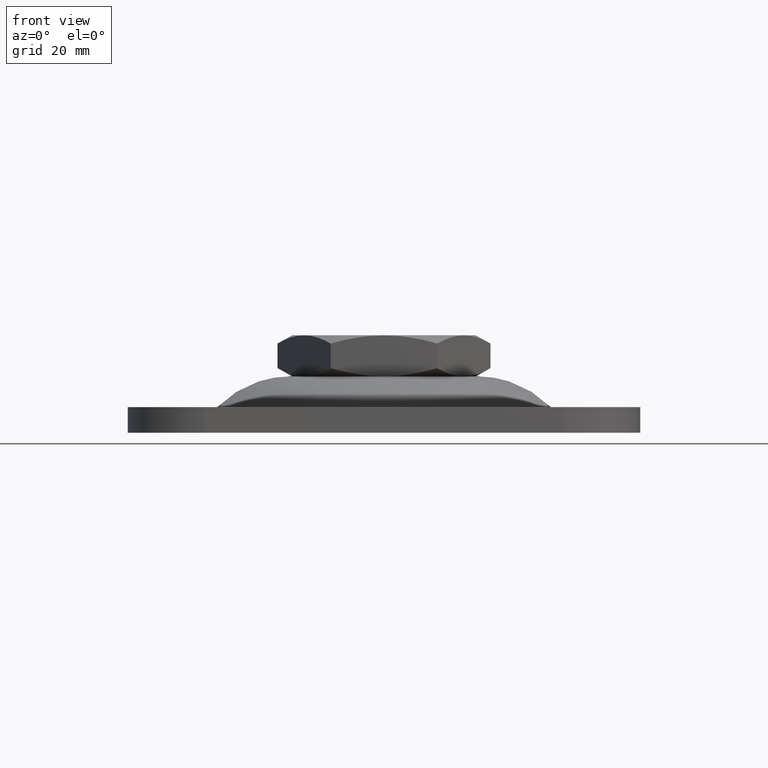
[diagram: clean part render]
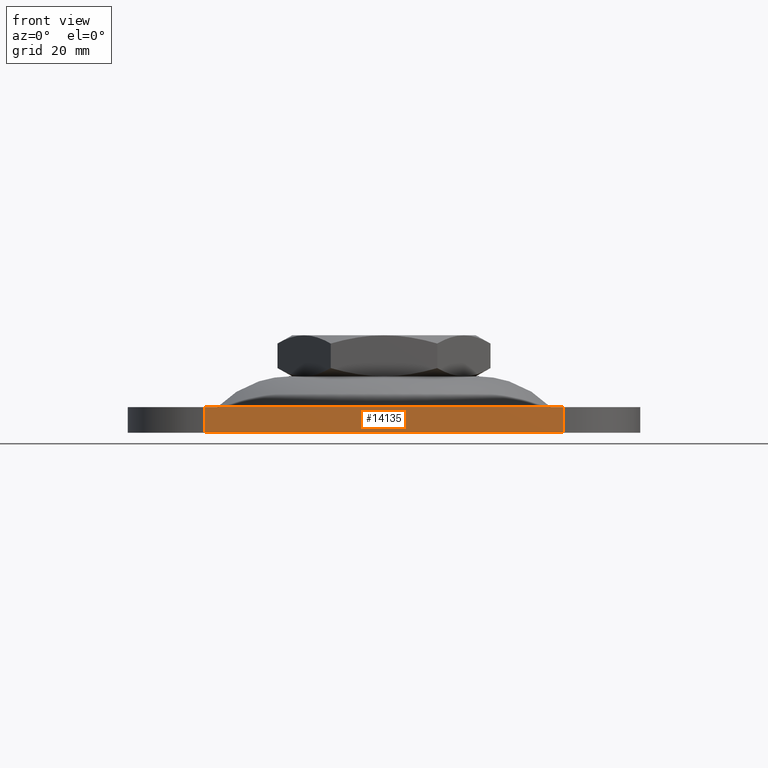
[diagram: same view with one face highlighted and labeled with its STEP entity id]
A machine part, front view. The second image highlights one B-rep face of the part: STEP entity #14135.
In plain terms, the highlighted planar face has unit normal (0, -1, -0).
Its self-contained STEP definition (entity closure, byte-faithful):
#199 = CARTESIAN_POINT ( 'NONE',  ( 35.00000000000000000, -50.00000000000000000, 75.71067811865478347 ) ) ;
#237 = DIRECTION ( 'NONE',  ( 0.000000000000000000, -1.000000000000000000, -0.000000000000000000 ) ) ;
#2979 = CARTESIAN_POINT ( 'NONE',  ( 35.00000000000000000, -50.00000000000000000, -0.000000000000000000 ) ) ;
#3639 = DIRECTION ( 'NONE',  ( -0.000000000000000000, -0.000000000000000000, 1.000000000000000000 ) ) ;
#3721 = EDGE_CURVE ( 'NONE', #8932, #6790, #4233, .T. ) ;
#3817 = LINE ( 'NONE', #7916, #15351 ) ;
#3856 = CARTESIAN_POINT ( 'NONE',  ( 0.000000000000000000, -50.00000000000000000, 75.71067811865478347 ) ) ;
#4233 = LINE ( 'NONE', #12647, #8389 ) ;
#4291 = DIRECTION ( 'NONE',  ( -1.000000000000000000, 0.000000000000000000, 0.000000000000000000 ) ) ;
#4522 = EDGE_CURVE ( 'NONE', #8932, #5192, #3817, .T. ) ;
#5192 = VERTEX_POINT ( 'NONE', #12289 ) ;
#6166 = LINE ( 'NONE', #9216, #13668 ) ;
#6271 = PLANE ( 'NONE',  #8264 ) ;
#6470 = FACE_OUTER_BOUND ( 'NONE', #10559, .T. ) ;
#6790 = VERTEX_POINT ( 'NONE', #15531 ) ;
#7327 = VERTEX_POINT ( 'NONE', #2979 ) ;
#7391 = ORIENTED_EDGE ( 'NONE', *, *, #3721, .F. ) ;
#7916 = CARTESIAN_POINT ( 'NONE',  ( -35.00000000000000711, -50.00000000000000000, 0.000000000000000000 ) ) ;
#8231 = ORIENTED_EDGE ( 'NONE', *, *, #10541, .F. ) ;
#8264 = AXIS2_PLACEMENT_3D ( 'NONE', #3856, #237, #8629 ) ;
#8369 = LINE ( 'NONE', #199, #14951 ) ;
#8389 = VECTOR ( 'NONE', #8806, 1000.000000000000000 ) ;
#8629 = DIRECTION ( 'NONE',  ( 0.000000000000000000, 0.000000000000000000, -1.000000000000000000 ) ) ;
#8806 = DIRECTION ( 'NONE',  ( 1.000000000000000000, 0.000000000000000000, 0.000000000000000000 ) ) ;
#8932 = VERTEX_POINT ( 'NONE', #12919 ) ;
#9216 = CARTESIAN_POINT ( 'NONE',  ( 0.000000000000000000, -50.00000000000000000, -0.000000000000000000 ) ) ;
#10314 = DIRECTION ( 'NONE',  ( 0.000000000000000000, 0.000000000000000000, -1.000000000000000000 ) ) ;
#10364 = ORIENTED_EDGE ( 'NONE', *, *, #4522, .T. ) ;
#10541 = EDGE_CURVE ( 'NONE', #7327, #5192, #6166, .T. ) ;
#10559 = EDGE_LOOP ( 'NONE', ( #7391, #10364, #8231, #14312 ) ) ;
#12289 = CARTESIAN_POINT ( 'NONE',  ( -35.00000000000000711, -50.00000000000000000, 0.000000000000000000 ) ) ;
#12647 = CARTESIAN_POINT ( 'NONE',  ( 0.000000000000000000, -50.00000000000000000, 5.000000000000004441 ) ) ;
#12919 = CARTESIAN_POINT ( 'NONE',  ( -35.00000000000000711, -50.00000000000000000, 5.000000000000004441 ) ) ;
#13636 = EDGE_CURVE ( 'NONE', #7327, #6790, #8369, .T. ) ;
#13668 = VECTOR ( 'NONE', #4291, 1000.000000000000000 ) ;
#14135 = ADVANCED_FACE ( 'NONE', ( #6470 ), #6271, .T. ) ;
#14312 = ORIENTED_EDGE ( 'NONE', *, *, #13636, .T. ) ;
#14951 = VECTOR ( 'NONE', #3639, 1000.000000000000000 ) ;
#15351 = VECTOR ( 'NONE', #10314, 1000.000000000000000 ) ;
#15531 = CARTESIAN_POINT ( 'NONE',  ( 35.00000000000000000, -50.00000000000000000, 5.000000000000004441 ) ) ;